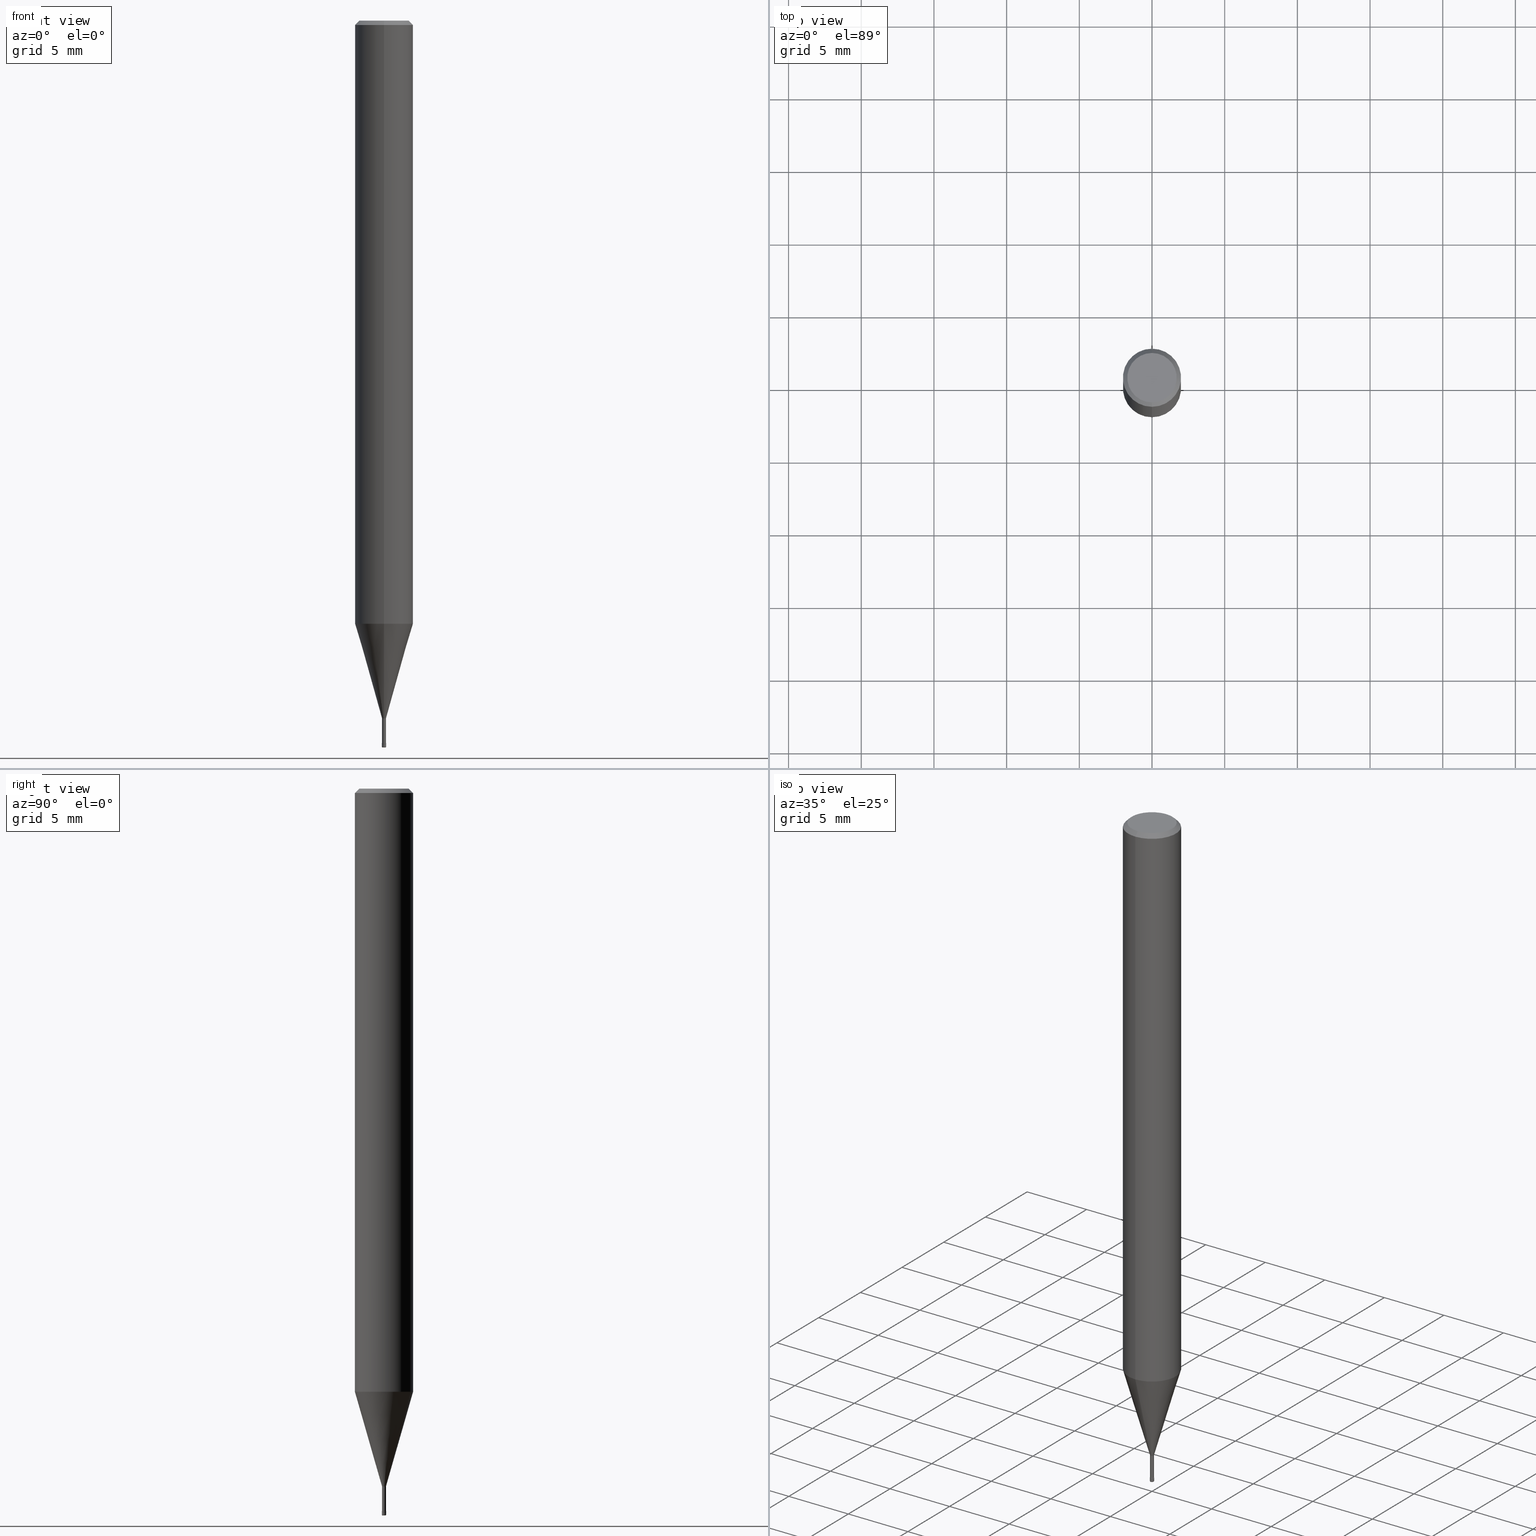
[diagram: canonical four-view strip — front | top / right | iso, engineering-drawing reading convention]
A machine part, canonical four-view strip (front | top / right | iso — engineering-drawing reading convention). The complete STEP part file that produces these views, byte-faithful:
ISO-10303-21;
HEADER;
FILE_DESCRIPTION(('no description'),'unknown implementation level');
FILE_NAME('HLRS2003-005-020E-Huellk.stp','  ',('CIMSOURCE GmbH'),('CADClick - KiM GmbH - www.kimweb.de'),'unknown preprocess','ACIS','unknown authorization');
FILE_SCHEMA(('automotive_design'));
ENDSEC;
DATA;
#1=MECHANICAL_DESIGN_GEOMETRIC_PRESENTATION_REPRESENTATION(' ',(#14,#15,#16,#17,#18,#19,#20,#21,#22,#23,#24,#25,#26,#27,#28,#29,#30,#31,#32,#33,#34,#35,#36,#37,#38,#39,#40,#41,#42,#43,#44,#45,#46,#47,#48,#49,#50,#51,#52,#53,#54,#55,#56,#57,#58,#59,#60,#61,#62,#63,#64,#65,#66,#67,#68,#69,#70,#71,#72,#73,#74,#75,#76,#77,#78,#79,#80),#10);
#2=PRODUCT_DEFINITION_CONTEXT('',#81,'design');
#3=APPLICATION_PROTOCOL_DEFINITION('INTERNATIONAL STANDARD','automotive_design',1994,#81);
#4=PRODUCT_CATEGORY_RELATIONSHIP('NONE','NONE',#82,#83);
#5=SHAPE_DEFINITION_REPRESENTATION(#84,#85);
#6=PRODUCT_DEFINITION_CONTEXT('',#86,'design');
#7=APPLICATION_PROTOCOL_DEFINITION('INTERNATIONAL STANDARD','automotive_design',1994,#86);
#8=PRODUCT_CATEGORY_RELATIONSHIP('NONE','NONE',#87,#88);
#9=SHAPE_DEFINITION_REPRESENTATION(#89,#90);
#10= (GEOMETRIC_REPRESENTATION_CONTEXT(3)GLOBAL_UNCERTAINTY_ASSIGNED_CONTEXT((#93))GLOBAL_UNIT_ASSIGNED_CONTEXT((#95,#96,#97))REPRESENTATION_CONTEXT('NONE','WORKSPACE'));
#14=STYLED_ITEM('',(#99),#100);
#15=STYLED_ITEM('',(#101),#102);
#16=STYLED_ITEM('',(#103),#104);
#17=STYLED_ITEM('',(#105),#106);
#18=STYLED_ITEM('',(#107),#108);
#19=STYLED_ITEM('',(#109),#110);
#20=STYLED_ITEM('',(#111),#112);
#21=STYLED_ITEM('',(#113),#114);
#22=STYLED_ITEM('',(#115),#116);
#23=STYLED_ITEM('',(#117),#118);
#24=STYLED_ITEM('',(#119),#120);
#25=STYLED_ITEM('',(#121),#122);
#26=STYLED_ITEM('',(#123),#124);
#27=STYLED_ITEM('',(#125),#126);
#28=STYLED_ITEM('',(#127),#128);
#29=STYLED_ITEM('',(#129),#130);
#30=STYLED_ITEM('',(#131),#132);
#31=STYLED_ITEM('',(#133),#134);
#32=STYLED_ITEM('',(#135),#136);
#33=STYLED_ITEM('',(#137),#138);
#34=STYLED_ITEM('',(#139),#140);
#35=STYLED_ITEM('',(#141),#142);
#36=STYLED_ITEM('',(#143),#144);
#37=STYLED_ITEM('',(#145),#146);
#38=STYLED_ITEM('',(#147),#148);
#39=STYLED_ITEM('',(#149),#150);
#40=STYLED_ITEM('',(#151),#152);
#41=STYLED_ITEM('',(#153),#154);
#42=STYLED_ITEM('',(#155),#156);
#43=STYLED_ITEM('',(#157),#158);
#44=STYLED_ITEM('',(#159),#160);
#45=STYLED_ITEM('',(#161),#162);
#46=STYLED_ITEM('',(#163),#164);
#47=STYLED_ITEM('',(#165),#166);
#48=STYLED_ITEM('',(#167),#168);
#49=STYLED_ITEM('',(#169),#170);
#50=STYLED_ITEM('',(#171),#172);
#51=STYLED_ITEM('',(#173),#174);
#52=STYLED_ITEM('',(#175),#176);
#53=STYLED_ITEM('',(#177),#178);
#54=STYLED_ITEM('',(#179),#180);
#55=STYLED_ITEM('',(#181),#182);
#56=STYLED_ITEM('',(#183),#184);
#57=STYLED_ITEM('',(#185),#186);
#58=STYLED_ITEM('',(#187),#188);
#59=STYLED_ITEM('',(#189),#190);
#60=STYLED_ITEM('',(#191),#192);
#61=STYLED_ITEM('',(#193),#194);
#62=STYLED_ITEM('',(#195),#196);
#63=STYLED_ITEM('',(#197),#198);
#64=STYLED_ITEM('',(#199),#200);
#65=STYLED_ITEM('',(#201),#202);
#66=STYLED_ITEM('',(#203),#204);
#67=STYLED_ITEM('',(#205),#206);
#68=STYLED_ITEM('',(#207),#208);
#69=STYLED_ITEM('',(#209),#210);
#70=STYLED_ITEM('',(#211),#212);
#71=STYLED_ITEM('',(#213),#214);
#72=STYLED_ITEM('',(#215),#216);
#73=STYLED_ITEM('',(#217),#218);
#74=STYLED_ITEM('',(#219),#220);
#75=STYLED_ITEM('',(#221),#222);
#76=STYLED_ITEM('',(#223),#224);
#77=STYLED_ITEM('',(#225),#226);
#78=STYLED_ITEM('',(#227),#228);
#79=STYLED_ITEM('',(#229),#230);
#80=STYLED_ITEM('',(#231),#232);
#81=APPLICATION_CONTEXT(' ');
#82=PRODUCT_CATEGORY('part','NONE');
#83=PRODUCT_RELATED_PRODUCT_CATEGORY('detail',' ',(#233));
#84=PRODUCT_DEFINITION_SHAPE('NONE','NONE',#234);
#85=ADVANCED_BREP_SHAPE_REPRESENTATION('1',(#156,#235),#10);
#86=APPLICATION_CONTEXT(' ');
#87=PRODUCT_CATEGORY('part','NONE');
#88=PRODUCT_RELATED_PRODUCT_CATEGORY('detail',' ',(#236));
#89=PRODUCT_DEFINITION_SHAPE('NONE','NONE',#237);
#90=ADVANCED_BREP_SHAPE_REPRESENTATION('2',(#134,#238),#10);
#93=UNCERTAINTY_MEASURE_WITH_UNIT(LENGTH_MEASURE(1.0E-006),#95,'','');
#95= (CONVERSION_BASED_UNIT('MILLIMETRE',#241)LENGTH_UNIT()NAMED_UNIT(#244));
#96= (NAMED_UNIT(#246)PLANE_ANGLE_UNIT()SI_UNIT($,.RADIAN.));
#97= (NAMED_UNIT(#246)SOLID_ANGLE_UNIT()SI_UNIT($,.STERADIAN.));
#99=PRESENTATION_STYLE_ASSIGNMENT((#252));
#100=VERTEX_POINT('',#253);
#101=PRESENTATION_STYLE_ASSIGNMENT((#254));
#102=ADVANCED_FACE('',(#255),#256,.T.);
#103=PRESENTATION_STYLE_ASSIGNMENT((#257));
#104=EDGE_CURVE('',#222,#100,#258,.T.);
#105=PRESENTATION_STYLE_ASSIGNMENT((#259));
#106=ADVANCED_FACE('',(#260),#261,.T.);
#107=PRESENTATION_STYLE_ASSIGNMENT((#262));
#108=ADVANCED_FACE('',(#263),#264,.T.);
#109=PRESENTATION_STYLE_ASSIGNMENT((#265));
#110=ADVANCED_FACE('',(#266),#267,.T.);
#111=PRESENTATION_STYLE_ASSIGNMENT((#268));
#112=EDGE_CURVE('',#162,#132,#269,.T.);
#113=PRESENTATION_STYLE_ASSIGNMENT((#270));
#114=EDGE_CURVE('',#192,#162,#271,.T.);
#115=PRESENTATION_STYLE_ASSIGNMENT((#272));
#116=EDGE_CURVE('',#198,#200,#273,.T.);
#117=PRESENTATION_STYLE_ASSIGNMENT((#274));
#118=EDGE_CURVE('',#224,#170,#275,.T.);
#119=PRESENTATION_STYLE_ASSIGNMENT((#276));
#120=VERTEX_POINT('',#277);
#121=PRESENTATION_STYLE_ASSIGNMENT((#278));
#122=EDGE_CURVE('',#146,#120,#279,.T.);
#123=PRESENTATION_STYLE_ASSIGNMENT((#280));
#124=EDGE_CURVE('',#162,#192,#281,.T.);
#125=PRESENTATION_STYLE_ASSIGNMENT((#282));
#126=EDGE_CURVE('',#142,#132,#283,.T.);
#127=PRESENTATION_STYLE_ASSIGNMENT((#284));
#128=ADVANCED_FACE('',(#285),#286,.T.);
#129=PRESENTATION_STYLE_ASSIGNMENT((#287));
#130=EDGE_CURVE('',#160,#198,#288,.T.);
#131=PRESENTATION_STYLE_ASSIGNMENT((#289));
#132=VERTEX_POINT('',#290);
#133=PRESENTATION_STYLE_ASSIGNMENT((#291));
#134=MANIFOLD_SOLID_BREP('2',#292);
#135=PRESENTATION_STYLE_ASSIGNMENT((#293));
#136=EDGE_CURVE('',#200,#216,#294,.T.);
#137=PRESENTATION_STYLE_ASSIGNMENT((#295));
#138=ADVANCED_FACE('',(#296),#297,.T.);
#139=PRESENTATION_STYLE_ASSIGNMENT((#298));
#140=ADVANCED_FACE('',(#299),#300,.T.);
#141=PRESENTATION_STYLE_ASSIGNMENT((#301));
#142=VERTEX_POINT('',#302);
#143=PRESENTATION_STYLE_ASSIGNMENT((#303));
#144=EDGE_CURVE('',#216,#160,#304,.T.);
#145=PRESENTATION_STYLE_ASSIGNMENT((#305));
#146=VERTEX_POINT('',#306);
#147=PRESENTATION_STYLE_ASSIGNMENT((#307));
#148=EDGE_CURVE('',#226,#178,#308,.T.);
#149=PRESENTATION_STYLE_ASSIGNMENT((#309));
#150=EDGE_CURVE('',#120,#146,#310,.T.);
#151=PRESENTATION_STYLE_ASSIGNMENT((#311));
#152=EDGE_CURVE('',#166,#100,#312,.T.);
#153=PRESENTATION_STYLE_ASSIGNMENT((#313));
#154=EDGE_CURVE('',#172,#166,#314,.T.);
#155=PRESENTATION_STYLE_ASSIGNMENT((#315));
#156=MANIFOLD_SOLID_BREP('1',#316);
#157=PRESENTATION_STYLE_ASSIGNMENT((#317));
#158=ADVANCED_FACE('',(#318),#319,.T.);
#159=PRESENTATION_STYLE_ASSIGNMENT((#320));
#160=VERTEX_POINT('',#321);
#161=PRESENTATION_STYLE_ASSIGNMENT((#322));
#162=VERTEX_POINT('',#323);
#163=PRESENTATION_STYLE_ASSIGNMENT((#324));
#164=ADVANCED_FACE('',(#325),#326,.T.);
#165=PRESENTATION_STYLE_ASSIGNMENT((#327));
#166=VERTEX_POINT('',#328);
#167=PRESENTATION_STYLE_ASSIGNMENT((#329));
#168=EDGE_CURVE('',#166,#172,#330,.T.);
#169=PRESENTATION_STYLE_ASSIGNMENT((#331));
#170=VERTEX_POINT('',#332);
#171=PRESENTATION_STYLE_ASSIGNMENT((#333));
#172=VERTEX_POINT('',#334);
#173=PRESENTATION_STYLE_ASSIGNMENT((#335));
#174=ADVANCED_FACE('',(#336),#337,.T.);
#175=PRESENTATION_STYLE_ASSIGNMENT((#338));
#176=EDGE_CURVE('',#132,#178,#339,.T.);
#177=PRESENTATION_STYLE_ASSIGNMENT((#340));
#178=VERTEX_POINT('',#341);
#179=PRESENTATION_STYLE_ASSIGNMENT((#342));
#180=EDGE_CURVE('',#200,#198,#343,.T.);
#181=PRESENTATION_STYLE_ASSIGNMENT((#344));
#182=ADVANCED_FACE('',(#345),#346,.T.);
#183=PRESENTATION_STYLE_ASSIGNMENT((#347));
#184=EDGE_CURVE('',#100,#224,#348,.T.);
#185=PRESENTATION_STYLE_ASSIGNMENT((#349));
#186=ADVANCED_FACE('',(#350),#351,.T.);
#187=PRESENTATION_STYLE_ASSIGNMENT((#352));
#188=EDGE_CURVE('',#142,#192,#353,.T.);
#189=PRESENTATION_STYLE_ASSIGNMENT((#354));
#190=ADVANCED_FACE('',(#355),#356,.T.);
#191=PRESENTATION_STYLE_ASSIGNMENT((#357));
#192=VERTEX_POINT('',#358);
#193=PRESENTATION_STYLE_ASSIGNMENT((#359));
#194=EDGE_CURVE('',#160,#216,#360,.T.);
#195=PRESENTATION_STYLE_ASSIGNMENT((#361));
#196=EDGE_CURVE('',#226,#142,#362,.T.);
#197=PRESENTATION_STYLE_ASSIGNMENT((#363));
#198=VERTEX_POINT('',#364);
#199=PRESENTATION_STYLE_ASSIGNMENT((#365));
#200=VERTEX_POINT('',#366);
#201=PRESENTATION_STYLE_ASSIGNMENT((#367));
#202=EDGE_CURVE('',#170,#222,#368,.T.);
#203=PRESENTATION_STYLE_ASSIGNMENT((#369));
#204=ADVANCED_FACE('',(#370),#371,.T.);
#205=PRESENTATION_STYLE_ASSIGNMENT((#372));
#206=ADVANCED_FACE('',(#373,#374),#375,.T.);
#207=PRESENTATION_STYLE_ASSIGNMENT((#376));
#208=ADVANCED_FACE('',(#377),#378,.T.);
#209=PRESENTATION_STYLE_ASSIGNMENT((#379));
#210=EDGE_CURVE('',#120,#200,#380,.T.);
#211=PRESENTATION_STYLE_ASSIGNMENT((#381));
#212=EDGE_CURVE('',#178,#226,#382,.T.);
#213=PRESENTATION_STYLE_ASSIGNMENT((#383));
#214=ADVANCED_FACE('',(#384),#385,.T.);
#215=PRESENTATION_STYLE_ASSIGNMENT((#386));
#216=VERTEX_POINT('',#387);
#217=PRESENTATION_STYLE_ASSIGNMENT((#388));
#218=EDGE_CURVE('',#198,#146,#389,.T.);
#219=PRESENTATION_STYLE_ASSIGNMENT((#390));
#220=EDGE_CURVE('',#222,#170,#391,.T.);
#221=PRESENTATION_STYLE_ASSIGNMENT((#392));
#222=VERTEX_POINT('',#393);
#223=PRESENTATION_STYLE_ASSIGNMENT((#394));
#224=VERTEX_POINT('',#395);
#225=PRESENTATION_STYLE_ASSIGNMENT((#396));
#226=VERTEX_POINT('',#397);
#227=PRESENTATION_STYLE_ASSIGNMENT((#398));
#228=EDGE_CURVE('',#224,#172,#399,.T.);
#229=PRESENTATION_STYLE_ASSIGNMENT((#400));
#230=EDGE_CURVE('',#132,#142,#401,.T.);
#231=PRESENTATION_STYLE_ASSIGNMENT((#402));
#232=EDGE_CURVE('',#224,#100,#403,.T.);
#233=PRODUCT('1','1','PART-1-DESC',(#404));
#234=PRODUCT_DEFINITION('NONE','NONE',#405,#2);
#235=AXIS2_PLACEMENT_3D('',#406,#407,#408);
#236=PRODUCT('2','2','PART-2-DESC',(#409));
#237=PRODUCT_DEFINITION('NONE','NONE',#410,#6);
#238=AXIS2_PLACEMENT_3D('',#411,#412,#413);
#241=LENGTH_MEASURE_WITH_UNIT(LENGTH_MEASURE(1.0),#414);
#244=DIMENSIONAL_EXPONENTS(1.0,0.0,0.0,0.0,0.0,0.0,0.0);
#246=DIMENSIONAL_EXPONENTS(0.0,0.0,0.0,0.0,0.0,0.0,0.0);
#252=POINT_STYLE(' ',#415,POSITIVE_LENGTH_MEASURE(1.0E-006),#416);
#253=CARTESIAN_POINT('',(0.0,0.15,-49.95));
#254=SURFACE_STYLE_USAGE(.BOTH.,#417);
#255=FACE_OUTER_BOUND('',#418,.T.);
#256=CYLINDRICAL_SURFACE('',#419,2.0);
#257=CURVE_STYLE('',#420,POSITIVE_LENGTH_MEASURE(1.0E-006),#421);
#258=CIRCLE('',#422,0.0499999999999998);
#259=SURFACE_STYLE_USAGE(.BOTH.,#423);
#260=FACE_OUTER_BOUND('',#424,.T.);
#261=CONICAL_SURFACE('',#425,1.06745,0.279253818445948);
#262=SURFACE_STYLE_USAGE(.BOTH.,#426);
#263=FACE_OUTER_BOUND('',#427,.T.);
#264=CONICAL_SURFACE('',#428,0.14995,0.000399999978666625);
#265=SURFACE_STYLE_USAGE(.BOTH.,#429);
#266=FACE_OUTER_BOUND('',#430,.T.);
#267=CONICAL_SURFACE('',#431,0.14995,0.000399999978666625);
#268=CURVE_STYLE('',#432,POSITIVE_LENGTH_MEASURE(1.0E-006),#433);
#269=LINE('',#434,#435);
#270=CURVE_STYLE('',#436,POSITIVE_LENGTH_MEASURE(1.0E-006),#437);
#271=CIRCLE('',#438,1.7);
#272=CURVE_STYLE('',#439,POSITIVE_LENGTH_MEASURE(1.0E-006),#440);
#273=CIRCLE('',#441,0.13495);
#274=CURVE_STYLE('',#442,POSITIVE_LENGTH_MEASURE(1.0E-006),#443);
#275=CIRCLE('',#444,0.0499999999999998);
#276=POINT_STYLE(' ',#445,POSITIVE_LENGTH_MEASURE(1.0E-006),#446);
#277=CARTESIAN_POINT('',(1.6526062744833E-017,-0.13495,-49.7));
#278=CURVE_STYLE('',#447,POSITIVE_LENGTH_MEASURE(1.0E-006),#448);
#279=CIRCLE('',#449,0.13495);
#280=CURVE_STYLE('',#450,POSITIVE_LENGTH_MEASURE(1.0E-006),#451);
#281=CIRCLE('',#452,1.7);
#282=CURVE_STYLE('',#453,POSITIVE_LENGTH_MEASURE(1.0E-006),#454);
#283=CIRCLE('',#455,2.0);
#284=SURFACE_STYLE_USAGE(.BOTH.,#456);
#285=FACE_OUTER_BOUND('',#457,.T.);
#286=CONICAL_SURFACE('',#458,1.85,0.785398163397453);
#287=CURVE_STYLE('',#459,POSITIVE_LENGTH_MEASURE(1.0E-006),#460);
#288=LINE('',#461,#462);
#289=POINT_STYLE(' ',#463,POSITIVE_LENGTH_MEASURE(1.0E-006),#464);
#290=CARTESIAN_POINT('',(0.0,2.0,-0.299999999999997));
#291=SURFACE_STYLE_USAGE(.BOTH.,#465);
#292=CLOSED_SHELL('',(#182,#108,#174,#110,#214,#158));
#293=CURVE_STYLE('',#466,POSITIVE_LENGTH_MEASURE(1.0E-006),#467);
#294=LINE('',#468,#469);
#295=SURFACE_STYLE_USAGE(.BOTH.,#470);
#296=FACE_OUTER_BOUND('',#471,.T.);
#297=CYLINDRICAL_SURFACE('',#472,0.13495);
#298=SURFACE_STYLE_USAGE(.BOTH.,#473);
#299=FACE_OUTER_BOUND('',#474,.T.);
#300=CONICAL_SURFACE('',#475,1.85,0.785398163397453);
#301=POINT_STYLE(' ',#476,POSITIVE_LENGTH_MEASURE(1.0E-006),#477);
#302=CARTESIAN_POINT('',(2.44921270764475E-016,-2.0,-0.299999999999997));
#303=CURVE_STYLE('',#478,POSITIVE_LENGTH_MEASURE(1.0E-006),#479);
#304=CIRCLE('',#480,1.99995);
#305=POINT_STYLE(' ',#481,POSITIVE_LENGTH_MEASURE(1.0E-006),#482);
#306=CARTESIAN_POINT('',(0.0,0.13495,-49.7));
#307=CURVE_STYLE('',#483,POSITIVE_LENGTH_MEASURE(1.0E-006),#484);
#308=CIRCLE('',#485,2.0);
#309=CURVE_STYLE('',#486,POSITIVE_LENGTH_MEASURE(1.0E-006),#487);
#310=CIRCLE('',#488,0.13495);
#311=CURVE_STYLE('',#489,POSITIVE_LENGTH_MEASURE(1.0E-006),#490);
#312=LINE('',#491,#492);
#313=CURVE_STYLE('',#493,POSITIVE_LENGTH_MEASURE(1.0E-006),#494);
#314=CIRCLE('',#495,0.1499);
#315=SURFACE_STYLE_USAGE(.BOTH.,#496);
#316=CLOSED_SHELL('',(#138,#208,#102,#140,#206,#186,#128,#190,#106,#204,#164));
#317=SURFACE_STYLE_USAGE(.BOTH.,#497);
#318=FACE_OUTER_BOUND('',#498,.T.);
#319=PLANE('',#499);
#320=POINT_STYLE(' ',#500,POSITIVE_LENGTH_MEASURE(1.0E-006),#501);
#321=CARTESIAN_POINT('',(0.0,1.99995,-41.496));
#322=POINT_STYLE(' ',#502,POSITIVE_LENGTH_MEASURE(1.0E-006),#503);
#323=CARTESIAN_POINT('',(0.0,1.7,0.0));
#324=SURFACE_STYLE_USAGE(.BOTH.,#504);
#325=FACE_OUTER_BOUND('',#505,.T.);
#326=PLANE('',#506);
#327=POINT_STYLE(' ',#507,POSITIVE_LENGTH_MEASURE(1.0E-006),#508);
#328=CARTESIAN_POINT('',(0.0,0.1499,-49.7));
#329=CURVE_STYLE('',#509,POSITIVE_LENGTH_MEASURE(1.0E-006),#510);
#330=CIRCLE('',#511,0.1499);
#331=POINT_STYLE(' ',#512,POSITIVE_LENGTH_MEASURE(1.0E-006),#513);
#332=CARTESIAN_POINT('',(1.22460635382238E-017,-0.1,-50.0));
#333=POINT_STYLE(' ',#514,POSITIVE_LENGTH_MEASURE(1.0E-006),#515);
#334=CARTESIAN_POINT('',(1.83568492437974E-017,-0.1499,-49.7));
#335=SURFACE_STYLE_USAGE(.BOTH.,#516);
#336=FACE_OUTER_BOUND('',#517,.T.);
#337=PLANE('',#518);
#338=CURVE_STYLE('',#519,POSITIVE_LENGTH_MEASURE(1.0E-006),#520);
#339=LINE('',#521,#522);
#340=POINT_STYLE(' ',#523,POSITIVE_LENGTH_MEASURE(1.0E-006),#524);
#341=CARTESIAN_POINT('',(0.0,2.0,-41.496));
#342=CURVE_STYLE('',#525,POSITIVE_LENGTH_MEASURE(1.0E-006),#526);
#343=CIRCLE('',#527,0.13495);
#344=SURFACE_STYLE_USAGE(.BOTH.,#528);
#345=FACE_OUTER_BOUND('',#529,.T.);
#346=TOROIDAL_SURFACE('',#530,0.1,0.0499999999999998);
#347=CURVE_STYLE('',#531,POSITIVE_LENGTH_MEASURE(1.0E-006),#532);
#348=CIRCLE('',#533,0.15);
#349=SURFACE_STYLE_USAGE(.BOTH.,#534);
#350=FACE_OUTER_BOUND('',#535,.T.);
#351=PLANE('',#536);
#352=CURVE_STYLE('',#537,POSITIVE_LENGTH_MEASURE(1.0E-006),#538);
#353=LINE('',#539,#540);
#354=SURFACE_STYLE_USAGE(.BOTH.,#541);
#355=FACE_OUTER_BOUND('',#542,.T.);
#356=CYLINDRICAL_SURFACE('',#543,2.0);
#357=POINT_STYLE(' ',#544,POSITIVE_LENGTH_MEASURE(1.0E-006),#545);
#358=CARTESIAN_POINT('',(2.08183080149804E-016,-1.7,0.0));
#359=CURVE_STYLE('',#546,POSITIVE_LENGTH_MEASURE(1.0E-006),#547);
#360=CIRCLE('',#548,1.99995);
#361=CURVE_STYLE('',#549,POSITIVE_LENGTH_MEASURE(1.0E-006),#550);
#362=LINE('',#551,#552);
#363=POINT_STYLE(' ',#553,POSITIVE_LENGTH_MEASURE(1.0E-006),#554);
#364=CARTESIAN_POINT('',(0.0,0.13495,-48.0));
#365=POINT_STYLE(' ',#555,POSITIVE_LENGTH_MEASURE(1.0E-006),#556);
#366=CARTESIAN_POINT('',(1.6526062744833E-017,-0.13495,-48.0));
#367=CURVE_STYLE('',#557,POSITIVE_LENGTH_MEASURE(1.0E-006),#558);
#368=CIRCLE('',#559,0.1);
#369=SURFACE_STYLE_USAGE(.BOTH.,#560);
#370=FACE_OUTER_BOUND('',#561,.T.);
#371=CYLINDRICAL_SURFACE('',#562,0.13495);
#372=SURFACE_STYLE_USAGE(.BOTH.,#563);
#373=FACE_OUTER_BOUND('',#564,.T.);
#374=FACE_BOUND('',#565,.T.);
#375=PLANE('',#566);
#376=SURFACE_STYLE_USAGE(.BOTH.,#567);
#377=FACE_OUTER_BOUND('',#568,.T.);
#378=CONICAL_SURFACE('',#569,1.06745,0.279253818445948);
#379=CURVE_STYLE('',#570,POSITIVE_LENGTH_MEASURE(1.0E-006),#571);
#380=LINE('',#572,#573);
#381=CURVE_STYLE('',#574,POSITIVE_LENGTH_MEASURE(1.0E-006),#575);
#382=CIRCLE('',#576,2.0);
#383=SURFACE_STYLE_USAGE(.BOTH.,#577);
#384=FACE_OUTER_BOUND('',#578,.T.);
#385=TOROIDAL_SURFACE('',#579,0.1,0.0499999999999998);
#386=POINT_STYLE(' ',#580,POSITIVE_LENGTH_MEASURE(1.0E-006),#581);
#387=CARTESIAN_POINT('',(2.44915147732706E-016,-1.99995,-41.496));
#388=CURVE_STYLE('',#582,POSITIVE_LENGTH_MEASURE(1.0E-006),#583);
#389=LINE('',#584,#585);
#390=CURVE_STYLE('',#586,POSITIVE_LENGTH_MEASURE(1.0E-006),#587);
#391=CIRCLE('',#588,0.1);
#392=POINT_STYLE(' ',#589,POSITIVE_LENGTH_MEASURE(1.0E-006),#590);
#393=CARTESIAN_POINT('',(0.0,0.1,-50.0));
#394=POINT_STYLE(' ',#591,POSITIVE_LENGTH_MEASURE(1.0E-006),#592);
#395=CARTESIAN_POINT('',(1.83690953073357E-017,-0.15,-49.95));
#396=POINT_STYLE(' ',#593,POSITIVE_LENGTH_MEASURE(1.0E-006),#594);
#397=CARTESIAN_POINT('',(2.44921270764475E-016,-2.0,-41.496));
#398=CURVE_STYLE('',#595,POSITIVE_LENGTH_MEASURE(1.0E-006),#596);
#399=LINE('',#597,#598);
#400=CURVE_STYLE('',#599,POSITIVE_LENGTH_MEASURE(1.0E-006),#600);
#401=CIRCLE('',#601,2.0);
#402=CURVE_STYLE('',#602,POSITIVE_LENGTH_MEASURE(1.0E-006),#603);
#403=CIRCLE('',#604,0.15);
#404=PRODUCT_CONTEXT('',#81,'mechanical');
#405=PRODUCT_DEFINITION_FORMATION_WITH_SPECIFIED_SOURCE(' ','NONE',#233,.NOT_KNOWN.);
#406=CARTESIAN_POINT('',(0.0,0.0,0.0));
#407=DIRECTION('',(0.0,0.0,1.0));
#408=DIRECTION('',(1.0,0.0,0.0));
#409=PRODUCT_CONTEXT('',#86,'mechanical');
#410=PRODUCT_DEFINITION_FORMATION_WITH_SPECIFIED_SOURCE(' ','NONE',#236,.NOT_KNOWN.);
#411=CARTESIAN_POINT('',(0.0,0.0,0.0));
#412=DIRECTION('',(0.0,0.0,1.0));
#413=DIRECTION('',(1.0,0.0,0.0));
#414= (NAMED_UNIT(#244)LENGTH_UNIT()SI_UNIT(.MILLI.,.METRE.));
#415=PRE_DEFINED_MARKER('');
#416=COLOUR_RGB('',0.800000011920929,0.800000011920929,0.800000011920929);
#417=SURFACE_SIDE_STYLE('',(#606));
#418=EDGE_LOOP('',(#607,#608,#609,#610));
#419=AXIS2_PLACEMENT_3D('',#611,#612,#613);
#420=DRAUGHTING_PRE_DEFINED_CURVE_FONT('continuous');
#421=COLOUR_RGB('',0.800000011920929,0.800000011920929,0.800000011920929);
#422=AXIS2_PLACEMENT_3D('',#614,#615,#616);
#423=SURFACE_SIDE_STYLE('',(#617));
#424=EDGE_LOOP('',(#618,#619,#620,#621));
#425=AXIS2_PLACEMENT_3D('',#622,#623,#624);
#426=SURFACE_SIDE_STYLE('',(#625));
#427=EDGE_LOOP('',(#626,#627,#628,#629));
#428=AXIS2_PLACEMENT_3D('',#630,#631,#632);
#429=SURFACE_SIDE_STYLE('',(#633));
#430=EDGE_LOOP('',(#634,#635,#636,#637));
#431=AXIS2_PLACEMENT_3D('',#638,#639,#640);
#432=DRAUGHTING_PRE_DEFINED_CURVE_FONT('continuous');
#433=COLOUR_RGB('',0.498039215803146,0.498039215803146,0.498039215803146);
#434=CARTESIAN_POINT('',(-2.2655217545714E-016,1.85,-0.149999999999999));
#435=VECTOR('',#641,1.0);
#436=DRAUGHTING_PRE_DEFINED_CURVE_FONT('continuous');
#437=COLOUR_RGB('',0.498039215803146,0.498039215803146,0.498039215803146);
#438=AXIS2_PLACEMENT_3D('',#642,#643,#644);
#439=DRAUGHTING_PRE_DEFINED_CURVE_FONT('continuous');
#440=COLOUR_RGB('',0.498039215803146,0.498039215803146,0.498039215803146);
#441=AXIS2_PLACEMENT_3D('',#645,#646,#647);
#442=DRAUGHTING_PRE_DEFINED_CURVE_FONT('continuous');
#443=COLOUR_RGB('',0.800000011920929,0.800000011920929,0.800000011920929);
#444=AXIS2_PLACEMENT_3D('',#648,#649,#650);
#445=PRE_DEFINED_MARKER('');
#446=COLOUR_RGB('',0.498039215803146,0.498039215803146,0.498039215803146);
#447=DRAUGHTING_PRE_DEFINED_CURVE_FONT('continuous');
#448=COLOUR_RGB('',0.498039215803146,0.498039215803146,0.498039215803146);
#449=AXIS2_PLACEMENT_3D('',#651,#652,#653);
#450=DRAUGHTING_PRE_DEFINED_CURVE_FONT('continuous');
#451=COLOUR_RGB('',0.498039215803146,0.498039215803146,0.498039215803146);
#452=AXIS2_PLACEMENT_3D('',#654,#655,#656);
#453=DRAUGHTING_PRE_DEFINED_CURVE_FONT('continuous');
#454=COLOUR_RGB('',0.498039215803146,0.498039215803146,0.498039215803146);
#455=AXIS2_PLACEMENT_3D('',#657,#658,#659);
#456=SURFACE_SIDE_STYLE('',(#660));
#457=EDGE_LOOP('',(#661,#662,#663,#664));
#458=AXIS2_PLACEMENT_3D('',#665,#666,#667);
#459=DRAUGHTING_PRE_DEFINED_CURVE_FONT('continuous');
#460=COLOUR_RGB('',0.498039215803146,0.498039215803146,0.498039215803146);
#461=CARTESIAN_POINT('',(-1.3072060523877E-016,1.06745,-44.748));
#462=VECTOR('',#668,1.0);
#463=PRE_DEFINED_MARKER('');
#464=COLOUR_RGB('',0.498039215803146,0.498039215803146,0.498039215803146);
#465=SURFACE_SIDE_STYLE('',(#669));
#466=DRAUGHTING_PRE_DEFINED_CURVE_FONT('continuous');
#467=COLOUR_RGB('',0.498039215803146,0.498039215803146,0.498039215803146);
#468=CARTESIAN_POINT('',(1.3072060523877E-016,-1.06745,-44.748));
#469=VECTOR('',#670,1.0);
#470=SURFACE_SIDE_STYLE('',(#671));
#471=EDGE_LOOP('',(#672,#673,#674,#675));
#472=AXIS2_PLACEMENT_3D('',#676,#677,#678);
#473=SURFACE_SIDE_STYLE('',(#679));
#474=EDGE_LOOP('',(#680,#681,#682,#683));
#475=AXIS2_PLACEMENT_3D('',#684,#685,#686);
#476=PRE_DEFINED_MARKER('');
#477=COLOUR_RGB('',0.498039215803146,0.498039215803146,0.498039215803146);
#478=DRAUGHTING_PRE_DEFINED_CURVE_FONT('continuous');
#479=COLOUR_RGB('',0.498039215803146,0.498039215803146,0.498039215803146);
#480=AXIS2_PLACEMENT_3D('',#687,#688,#689);
#481=PRE_DEFINED_MARKER('');
#482=COLOUR_RGB('',0.498039215803146,0.498039215803146,0.498039215803146);
#483=DRAUGHTING_PRE_DEFINED_CURVE_FONT('continuous');
#484=COLOUR_RGB('',0.498039215803146,0.498039215803146,0.498039215803146);
#485=AXIS2_PLACEMENT_3D('',#690,#691,#692);
#486=DRAUGHTING_PRE_DEFINED_CURVE_FONT('continuous');
#487=COLOUR_RGB('',0.498039215803146,0.498039215803146,0.498039215803146);
#488=AXIS2_PLACEMENT_3D('',#693,#694,#695);
#489=DRAUGHTING_PRE_DEFINED_CURVE_FONT('continuous');
#490=COLOUR_RGB('',0.800000011920929,0.800000011920929,0.800000011920929);
#491=CARTESIAN_POINT('',(-1.83629722755666E-017,0.14995,-49.825));
#492=VECTOR('',#696,1.0);
#493=DRAUGHTING_PRE_DEFINED_CURVE_FONT('continuous');
#494=COLOUR_RGB('',0.800000011920929,0.800000011920929,0.800000011920929);
#495=AXIS2_PLACEMENT_3D('',#697,#698,#699);
#496=SURFACE_SIDE_STYLE('',(#700));
#497=SURFACE_SIDE_STYLE('',(#701));
#498=EDGE_LOOP('',(#702,#703));
#499=AXIS2_PLACEMENT_3D('',#704,#705,#706);
#500=PRE_DEFINED_MARKER('');
#501=COLOUR_RGB('',0.498039215803146,0.498039215803146,0.498039215803146);
#502=PRE_DEFINED_MARKER('');
#503=COLOUR_RGB('',0.498039215803146,0.498039215803146,0.498039215803146);
#504=SURFACE_SIDE_STYLE('',(#707));
#505=EDGE_LOOP('',(#708,#709));
#506=AXIS2_PLACEMENT_3D('',#710,#711,#712);
#507=PRE_DEFINED_MARKER('');
#508=COLOUR_RGB('',0.800000011920929,0.800000011920929,0.800000011920929);
#509=DRAUGHTING_PRE_DEFINED_CURVE_FONT('continuous');
#510=COLOUR_RGB('',0.800000011920929,0.800000011920929,0.800000011920929);
#511=AXIS2_PLACEMENT_3D('',#713,#714,#715);
#512=PRE_DEFINED_MARKER('');
#513=COLOUR_RGB('',0.800000011920929,0.800000011920929,0.800000011920929);
#514=PRE_DEFINED_MARKER('');
#515=COLOUR_RGB('',0.800000011920929,0.800000011920929,0.800000011920929);
#516=SURFACE_SIDE_STYLE('',(#716));
#517=EDGE_LOOP('',(#717,#718));
#518=AXIS2_PLACEMENT_3D('',#719,#720,#721);
#519=DRAUGHTING_PRE_DEFINED_CURVE_FONT('continuous');
#520=COLOUR_RGB('',0.498039215803146,0.498039215803146,0.498039215803146);
#521=CARTESIAN_POINT('',(-2.44921270764475E-016,2.0,-20.898));
#522=VECTOR('',#722,1.0);
#523=PRE_DEFINED_MARKER('');
#524=COLOUR_RGB('',0.498039215803146,0.498039215803146,0.498039215803146);
#525=DRAUGHTING_PRE_DEFINED_CURVE_FONT('continuous');
#526=COLOUR_RGB('',0.498039215803146,0.498039215803146,0.498039215803146);
#527=AXIS2_PLACEMENT_3D('',#723,#724,#725);
#528=SURFACE_SIDE_STYLE('',(#726));
#529=EDGE_LOOP('',(#727,#728,#729,#730));
#530=AXIS2_PLACEMENT_3D('',#731,#732,#733);
#531=DRAUGHTING_PRE_DEFINED_CURVE_FONT('continuous');
#532=COLOUR_RGB('',0.800000011920929,0.800000011920929,0.800000011920929);
#533=AXIS2_PLACEMENT_3D('',#734,#735,#736);
#534=SURFACE_SIDE_STYLE('',(#737));
#535=EDGE_LOOP('',(#738,#739));
#536=AXIS2_PLACEMENT_3D('',#740,#741,#742);
#537=DRAUGHTING_PRE_DEFINED_CURVE_FONT('continuous');
#538=COLOUR_RGB('',0.498039215803146,0.498039215803146,0.498039215803146);
#539=CARTESIAN_POINT('',(2.2655217545714E-016,-1.85,-0.149999999999999));
#540=VECTOR('',#743,1.0);
#541=SURFACE_SIDE_STYLE('',(#744));
#542=EDGE_LOOP('',(#745,#746,#747,#748));
#543=AXIS2_PLACEMENT_3D('',#749,#750,#751);
#544=PRE_DEFINED_MARKER('');
#545=COLOUR_RGB('',0.498039215803146,0.498039215803146,0.498039215803146);
#546=DRAUGHTING_PRE_DEFINED_CURVE_FONT('continuous');
#547=COLOUR_RGB('',0.498039215803146,0.498039215803146,0.498039215803146);
#548=AXIS2_PLACEMENT_3D('',#752,#753,#754);
#549=DRAUGHTING_PRE_DEFINED_CURVE_FONT('continuous');
#550=COLOUR_RGB('',0.498039215803146,0.498039215803146,0.498039215803146);
#551=CARTESIAN_POINT('',(2.44921270764475E-016,-2.0,-20.898));
#552=VECTOR('',#755,1.0);
#553=PRE_DEFINED_MARKER('');
#554=COLOUR_RGB('',0.498039215803146,0.498039215803146,0.498039215803146);
#555=PRE_DEFINED_MARKER('');
#556=COLOUR_RGB('',0.498039215803146,0.498039215803146,0.498039215803146);
#557=DRAUGHTING_PRE_DEFINED_CURVE_FONT('continuous');
#558=COLOUR_RGB('',0.800000011920929,0.800000011920929,0.800000011920929);
#559=AXIS2_PLACEMENT_3D('',#756,#757,#758);
#560=SURFACE_SIDE_STYLE('',(#759));
#561=EDGE_LOOP('',(#760,#761,#762,#763));
#562=AXIS2_PLACEMENT_3D('',#764,#765,#766);
#563=SURFACE_SIDE_STYLE('',(#767));
#564=EDGE_LOOP('',(#768,#769));
#565=EDGE_LOOP('',(#770,#771));
#566=AXIS2_PLACEMENT_3D('',#772,#773,#774);
#567=SURFACE_SIDE_STYLE('',(#775));
#568=EDGE_LOOP('',(#776,#777,#778,#779));
#569=AXIS2_PLACEMENT_3D('',#780,#781,#782);
#570=DRAUGHTING_PRE_DEFINED_CURVE_FONT('continuous');
#571=COLOUR_RGB('',0.498039215803146,0.498039215803146,0.498039215803146);
#572=CARTESIAN_POINT('',(1.6526062744833E-017,-0.13495,-48.85));
#573=VECTOR('',#783,1.0);
#574=DRAUGHTING_PRE_DEFINED_CURVE_FONT('continuous');
#575=COLOUR_RGB('',0.498039215803146,0.498039215803146,0.498039215803146);
#576=AXIS2_PLACEMENT_3D('',#784,#785,#786);
#577=SURFACE_SIDE_STYLE('',(#787));
#578=EDGE_LOOP('',(#788,#789,#790,#791));
#579=AXIS2_PLACEMENT_3D('',#792,#793,#794);
#580=PRE_DEFINED_MARKER('');
#581=COLOUR_RGB('',0.498039215803146,0.498039215803146,0.498039215803146);
#582=DRAUGHTING_PRE_DEFINED_CURVE_FONT('continuous');
#583=COLOUR_RGB('',0.498039215803146,0.498039215803146,0.498039215803146);
#584=CARTESIAN_POINT('',(-1.6526062744833E-017,0.13495,-48.85));
#585=VECTOR('',#795,1.0);
#586=DRAUGHTING_PRE_DEFINED_CURVE_FONT('continuous');
#587=COLOUR_RGB('',0.800000011920929,0.800000011920929,0.800000011920929);
#588=AXIS2_PLACEMENT_3D('',#796,#797,#798);
#589=PRE_DEFINED_MARKER('');
#590=COLOUR_RGB('',0.800000011920929,0.800000011920929,0.800000011920929);
#591=PRE_DEFINED_MARKER('');
#592=COLOUR_RGB('',0.800000011920929,0.800000011920929,0.800000011920929);
#593=PRE_DEFINED_MARKER('');
#594=COLOUR_RGB('',0.498039215803146,0.498039215803146,0.498039215803146);
#595=DRAUGHTING_PRE_DEFINED_CURVE_FONT('continuous');
#596=COLOUR_RGB('',0.800000011920929,0.800000011920929,0.800000011920929);
#597=CARTESIAN_POINT('',(1.83629722755666E-017,-0.14995,-49.825));
#598=VECTOR('',#799,1.0);
#599=DRAUGHTING_PRE_DEFINED_CURVE_FONT('continuous');
#600=COLOUR_RGB('',0.498039215803146,0.498039215803146,0.498039215803146);
#601=AXIS2_PLACEMENT_3D('',#800,#801,#802);
#602=DRAUGHTING_PRE_DEFINED_CURVE_FONT('continuous');
#603=COLOUR_RGB('',0.800000011920929,0.800000011920929,0.800000011920929);
#604=AXIS2_PLACEMENT_3D('',#803,#804,#805);
#606=SURFACE_STYLE_FILL_AREA(#806);
#607=ORIENTED_EDGE('',*,*,#176,.F.);
#608=ORIENTED_EDGE('',*,*,#230,.T.);
#609=ORIENTED_EDGE('',*,*,#196,.F.);
#610=ORIENTED_EDGE('',*,*,#212,.F.);
#611=CARTESIAN_POINT('',(0.0,0.0,-20.898));
#612=DIRECTION('',(-0.0,-0.0,1.0));
#613=DIRECTION('',(0.0,1.0,0.0));
#614=CARTESIAN_POINT('',(-1.22460635382238E-017,0.1,-49.95));
#615=DIRECTION('',(1.0,1.22460635382238E-016,0.0));
#616=DIRECTION('',(-1.22460635382238E-016,1.0,0.0));
#617=SURFACE_STYLE_FILL_AREA(#807);
#618=ORIENTED_EDGE('',*,*,#130,.T.);
#619=ORIENTED_EDGE('',*,*,#180,.F.);
#620=ORIENTED_EDGE('',*,*,#136,.T.);
#621=ORIENTED_EDGE('',*,*,#144,.T.);
#622=CARTESIAN_POINT('',(0.0,0.0,-44.748));
#623=DIRECTION('',(-0.0,-0.0,1.0));
#624=DIRECTION('',(0.0,1.0,0.0));
#625=SURFACE_STYLE_FILL_AREA(#808);
#626=ORIENTED_EDGE('',*,*,#152,.F.);
#627=ORIENTED_EDGE('',*,*,#168,.T.);
#628=ORIENTED_EDGE('',*,*,#228,.F.);
#629=ORIENTED_EDGE('',*,*,#184,.F.);
#630=CARTESIAN_POINT('',(0.0,0.0,-49.825));
#631=DIRECTION('',(0.0,-0.0,-1.0));
#632=DIRECTION('',(0.0,1.0,0.0));
#633=SURFACE_STYLE_FILL_AREA(#809);
#634=ORIENTED_EDGE('',*,*,#152,.T.);
#635=ORIENTED_EDGE('',*,*,#232,.F.);
#636=ORIENTED_EDGE('',*,*,#228,.T.);
#637=ORIENTED_EDGE('',*,*,#154,.T.);
#638=CARTESIAN_POINT('',(0.0,0.0,-49.825));
#639=DIRECTION('',(0.0,-0.0,-1.0));
#640=DIRECTION('',(0.0,1.0,0.0));
#641=DIRECTION('',(-8.6592745707194E-017,0.707106781186551,-0.707106781186544));
#642=CARTESIAN_POINT('',(0.0,0.0,0.0));
#643=DIRECTION('',(0.0,0.0,-1.0));
#644=DIRECTION('',(0.0,1.0,0.0));
#645=CARTESIAN_POINT('',(0.0,0.0,-48.0));
#646=DIRECTION('',(0.0,0.0,-1.0));
#647=DIRECTION('',(0.0,1.0,0.0));
#648=CARTESIAN_POINT('',(1.22460635382238E-017,-0.1,-49.95));
#649=DIRECTION('',(1.0,1.22460635382238E-016,0.0));
#650=DIRECTION('',(1.22460635382238E-016,-1.0,-0.0));
#651=CARTESIAN_POINT('',(0.0,0.0,-49.7));
#652=DIRECTION('',(0.0,0.0,-1.0));
#653=DIRECTION('',(0.0,1.0,0.0));
#654=CARTESIAN_POINT('',(0.0,0.0,0.0));
#655=DIRECTION('',(0.0,0.0,-1.0));
#656=DIRECTION('',(0.0,1.0,0.0));
#657=CARTESIAN_POINT('',(0.0,0.0,-0.299999999999997));
#658=DIRECTION('',(0.0,0.0,-1.0));
#659=DIRECTION('',(0.0,1.0,0.0));
#660=SURFACE_STYLE_FILL_AREA(#810);
#661=ORIENTED_EDGE('',*,*,#112,.T.);
#662=ORIENTED_EDGE('',*,*,#126,.F.);
#663=ORIENTED_EDGE('',*,*,#188,.T.);
#664=ORIENTED_EDGE('',*,*,#114,.T.);
#665=CARTESIAN_POINT('',(0.0,0.0,-0.149999999999999));
#666=DIRECTION('',(0.0,-0.0,-1.0));
#667=DIRECTION('',(0.0,1.0,0.0));
#668=DIRECTION('',(3.3754859704966E-017,-0.275638449854572,-0.961261382227419));
#669=SURFACE_STYLE_FILL_AREA(#811);
#670=DIRECTION('',(3.3754859704966E-017,-0.275638449854572,0.961261382227419));
#671=SURFACE_STYLE_FILL_AREA(#812);
#672=ORIENTED_EDGE('',*,*,#218,.F.);
#673=ORIENTED_EDGE('',*,*,#116,.T.);
#674=ORIENTED_EDGE('',*,*,#210,.F.);
#675=ORIENTED_EDGE('',*,*,#122,.F.);
#676=CARTESIAN_POINT('',(0.0,0.0,-48.85));
#677=DIRECTION('',(-0.0,-0.0,1.0));
#678=DIRECTION('',(0.0,1.0,0.0));
#679=SURFACE_STYLE_FILL_AREA(#813);
#680=ORIENTED_EDGE('',*,*,#112,.F.);
#681=ORIENTED_EDGE('',*,*,#124,.T.);
#682=ORIENTED_EDGE('',*,*,#188,.F.);
#683=ORIENTED_EDGE('',*,*,#230,.F.);
#684=CARTESIAN_POINT('',(0.0,0.0,-0.149999999999999));
#685=DIRECTION('',(0.0,-0.0,-1.0));
#686=DIRECTION('',(0.0,1.0,0.0));
#687=CARTESIAN_POINT('',(0.0,0.0,-41.496));
#688=DIRECTION('',(0.0,0.0,-1.0));
#689=DIRECTION('',(0.0,1.0,0.0));
#690=CARTESIAN_POINT('',(0.0,0.0,-41.496));
#691=DIRECTION('',(0.0,0.0,-1.0));
#692=DIRECTION('',(0.0,1.0,0.0));
#693=CARTESIAN_POINT('',(0.0,0.0,-49.7));
#694=DIRECTION('',(0.0,0.0,-1.0));
#695=DIRECTION('',(0.0,1.0,0.0));
#696=DIRECTION('',(-4.89842502341498E-020,0.00039999996799996,-0.99999992000001));
#697=CARTESIAN_POINT('',(0.0,0.0,-49.7));
#698=DIRECTION('',(0.0,0.0,-1.0));
#699=DIRECTION('',(0.0,1.0,0.0));
#700=SURFACE_STYLE_FILL_AREA(#814);
#701=SURFACE_STYLE_FILL_AREA(#815);
#702=ORIENTED_EDGE('',*,*,#220,.T.);
#703=ORIENTED_EDGE('',*,*,#202,.T.);
#704=CARTESIAN_POINT('',(0.0,0.05,-50.0));
#705=DIRECTION('',(0.0,0.0,-1.0));
#706=DIRECTION('',(0.0,1.0,0.0));
#707=SURFACE_STYLE_FILL_AREA(#816);
#708=ORIENTED_EDGE('',*,*,#122,.T.);
#709=ORIENTED_EDGE('',*,*,#150,.T.);
#710=CARTESIAN_POINT('',(0.0,0.067475,-49.7));
#711=DIRECTION('',(0.0,0.0,-1.0));
#712=DIRECTION('',(0.0,1.0,0.0));
#713=CARTESIAN_POINT('',(0.0,0.0,-49.7));
#714=DIRECTION('',(0.0,0.0,-1.0));
#715=DIRECTION('',(0.0,1.0,0.0));
#716=SURFACE_STYLE_FILL_AREA(#817);
#717=ORIENTED_EDGE('',*,*,#168,.F.);
#718=ORIENTED_EDGE('',*,*,#154,.F.);
#719=CARTESIAN_POINT('',(0.0,0.07495,-49.7));
#720=DIRECTION('',(-0.0,0.0,1.0));
#721=DIRECTION('',(0.0,-1.0,0.0));
#722=DIRECTION('',(0.0,0.0,-1.0));
#723=CARTESIAN_POINT('',(0.0,0.0,-48.0));
#724=DIRECTION('',(0.0,0.0,-1.0));
#725=DIRECTION('',(0.0,1.0,0.0));
#726=SURFACE_STYLE_FILL_AREA(#818);
#727=ORIENTED_EDGE('',*,*,#118,.F.);
#728=ORIENTED_EDGE('',*,*,#232,.T.);
#729=ORIENTED_EDGE('',*,*,#104,.F.);
#730=ORIENTED_EDGE('',*,*,#202,.F.);
#731=CARTESIAN_POINT('',(0.0,0.0,-49.95));
#732=DIRECTION('',(0.0,0.0,-1.0));
#733=DIRECTION('',(0.0,-1.0,0.0));
#734=CARTESIAN_POINT('',(0.0,0.0,-49.95));
#735=DIRECTION('',(0.0,0.0,-1.0));
#736=DIRECTION('',(0.0,1.0,0.0));
#737=SURFACE_STYLE_FILL_AREA(#819);
#738=ORIENTED_EDGE('',*,*,#124,.F.);
#739=ORIENTED_EDGE('',*,*,#114,.F.);
#740=CARTESIAN_POINT('',(0.0,0.85,0.0));
#741=DIRECTION('',(-0.0,0.0,1.0));
#742=DIRECTION('',(0.0,-1.0,0.0));
#743=DIRECTION('',(-8.6592745707194E-017,0.707106781186551,0.707106781186544));
#744=SURFACE_STYLE_FILL_AREA(#820);
#745=ORIENTED_EDGE('',*,*,#176,.T.);
#746=ORIENTED_EDGE('',*,*,#148,.F.);
#747=ORIENTED_EDGE('',*,*,#196,.T.);
#748=ORIENTED_EDGE('',*,*,#126,.T.);
#749=CARTESIAN_POINT('',(0.0,0.0,-20.898));
#750=DIRECTION('',(-0.0,-0.0,1.0));
#751=DIRECTION('',(0.0,1.0,0.0));
#752=CARTESIAN_POINT('',(0.0,0.0,-41.496));
#753=DIRECTION('',(0.0,0.0,-1.0));
#754=DIRECTION('',(0.0,1.0,0.0));
#755=DIRECTION('',(-0.0,-0.0,1.0));
#756=CARTESIAN_POINT('',(0.0,0.0,-50.0));
#757=DIRECTION('',(0.0,0.0,-1.0));
#758=DIRECTION('',(0.0,1.0,0.0));
#759=SURFACE_STYLE_FILL_AREA(#821);
#760=ORIENTED_EDGE('',*,*,#218,.T.);
#761=ORIENTED_EDGE('',*,*,#150,.F.);
#762=ORIENTED_EDGE('',*,*,#210,.T.);
#763=ORIENTED_EDGE('',*,*,#180,.T.);
#764=CARTESIAN_POINT('',(0.0,0.0,-48.85));
#765=DIRECTION('',(-0.0,-0.0,1.0));
#766=DIRECTION('',(0.0,1.0,0.0));
#767=SURFACE_STYLE_FILL_AREA(#822);
#768=ORIENTED_EDGE('',*,*,#212,.T.);
#769=ORIENTED_EDGE('',*,*,#148,.T.);
#770=ORIENTED_EDGE('',*,*,#194,.F.);
#771=ORIENTED_EDGE('',*,*,#144,.F.);
#772=CARTESIAN_POINT('',(0.0,1.0,-41.496));
#773=DIRECTION('',(0.0,0.0,-1.0));
#774=DIRECTION('',(0.0,1.0,0.0));
#775=SURFACE_STYLE_FILL_AREA(#823);
#776=ORIENTED_EDGE('',*,*,#130,.F.);
#777=ORIENTED_EDGE('',*,*,#194,.T.);
#778=ORIENTED_EDGE('',*,*,#136,.F.);
#779=ORIENTED_EDGE('',*,*,#116,.F.);
#780=CARTESIAN_POINT('',(0.0,0.0,-44.748));
#781=DIRECTION('',(-0.0,-0.0,1.0));
#782=DIRECTION('',(0.0,1.0,0.0));
#783=DIRECTION('',(-0.0,-0.0,1.0));
#784=CARTESIAN_POINT('',(0.0,0.0,-41.496));
#785=DIRECTION('',(0.0,0.0,-1.0));
#786=DIRECTION('',(0.0,1.0,0.0));
#787=SURFACE_STYLE_FILL_AREA(#824);
#788=ORIENTED_EDGE('',*,*,#118,.T.);
#789=ORIENTED_EDGE('',*,*,#220,.F.);
#790=ORIENTED_EDGE('',*,*,#104,.T.);
#791=ORIENTED_EDGE('',*,*,#184,.T.);
#792=CARTESIAN_POINT('',(0.0,0.0,-49.95));
#793=DIRECTION('',(0.0,0.0,-1.0));
#794=DIRECTION('',(0.0,-1.0,0.0));
#795=DIRECTION('',(0.0,0.0,-1.0));
#796=CARTESIAN_POINT('',(0.0,0.0,-50.0));
#797=DIRECTION('',(0.0,0.0,-1.0));
#798=DIRECTION('',(0.0,1.0,0.0));
#799=DIRECTION('',(-4.89842502341498E-020,0.00039999996799996,0.99999992000001));
#800=CARTESIAN_POINT('',(0.0,0.0,-0.299999999999997));
#801=DIRECTION('',(0.0,0.0,-1.0));
#802=DIRECTION('',(0.0,1.0,0.0));
#803=CARTESIAN_POINT('',(0.0,0.0,-49.95));
#804=DIRECTION('',(0.0,0.0,-1.0));
#805=DIRECTION('',(0.0,1.0,0.0));
#806=FILL_AREA_STYLE('',(#825));
#807=FILL_AREA_STYLE('',(#826));
#808=FILL_AREA_STYLE('',(#827));
#809=FILL_AREA_STYLE('',(#828));
#810=FILL_AREA_STYLE('',(#829));
#811=FILL_AREA_STYLE('',(#830));
#812=FILL_AREA_STYLE('',(#831));
#813=FILL_AREA_STYLE('',(#832));
#814=FILL_AREA_STYLE('',(#833));
#815=FILL_AREA_STYLE('',(#834));
#816=FILL_AREA_STYLE('',(#835));
#817=FILL_AREA_STYLE('',(#836));
#818=FILL_AREA_STYLE('',(#837));
#819=FILL_AREA_STYLE('',(#838));
#820=FILL_AREA_STYLE('',(#839));
#821=FILL_AREA_STYLE('',(#840));
#822=FILL_AREA_STYLE('',(#841));
#823=FILL_AREA_STYLE('',(#842));
#824=FILL_AREA_STYLE('',(#843));
#825=FILL_AREA_STYLE_COLOUR('',#844);
#826=FILL_AREA_STYLE_COLOUR('',#845);
#827=FILL_AREA_STYLE_COLOUR('',#846);
#828=FILL_AREA_STYLE_COLOUR('',#847);
#829=FILL_AREA_STYLE_COLOUR('',#848);
#830=FILL_AREA_STYLE_COLOUR('',#849);
#831=FILL_AREA_STYLE_COLOUR('',#850);
#832=FILL_AREA_STYLE_COLOUR('',#851);
#833=FILL_AREA_STYLE_COLOUR('',#852);
#834=FILL_AREA_STYLE_COLOUR('',#853);
#835=FILL_AREA_STYLE_COLOUR('',#854);
#836=FILL_AREA_STYLE_COLOUR('',#855);
#837=FILL_AREA_STYLE_COLOUR('',#856);
#838=FILL_AREA_STYLE_COLOUR('',#857);
#839=FILL_AREA_STYLE_COLOUR('',#858);
#840=FILL_AREA_STYLE_COLOUR('',#859);
#841=FILL_AREA_STYLE_COLOUR('',#860);
#842=FILL_AREA_STYLE_COLOUR('',#861);
#843=FILL_AREA_STYLE_COLOUR('',#862);
#844=COLOUR_RGB('',0.498039215803146,0.498039215803146,0.498039215803146);
#845=COLOUR_RGB('',0.498039215803146,0.498039215803146,0.498039215803146);
#846=COLOUR_RGB('',0.800000011920929,0.800000011920929,0.800000011920929);
#847=COLOUR_RGB('',0.800000011920929,0.800000011920929,0.800000011920929);
#848=COLOUR_RGB('',0.498039215803146,0.498039215803146,0.498039215803146);
#849=COLOUR_RGB('',0.800000011920929,0.800000011920929,0.800000011920929);
#850=COLOUR_RGB('',0.498039215803146,0.498039215803146,0.498039215803146);
#851=COLOUR_RGB('',0.498039215803146,0.498039215803146,0.498039215803146);
#852=COLOUR_RGB('',0.498039215803146,0.498039215803146,0.498039215803146);
#853=COLOUR_RGB('',0.800000011920929,0.800000011920929,0.800000011920929);
#854=COLOUR_RGB('',0.498039215803146,0.498039215803146,0.498039215803146);
#855=COLOUR_RGB('',0.800000011920929,0.800000011920929,0.800000011920929);
#856=COLOUR_RGB('',0.800000011920929,0.800000011920929,0.800000011920929);
#857=COLOUR_RGB('',0.498039215803146,0.498039215803146,0.498039215803146);
#858=COLOUR_RGB('',0.498039215803146,0.498039215803146,0.498039215803146);
#859=COLOUR_RGB('',0.498039215803146,0.498039215803146,0.498039215803146);
#860=COLOUR_RGB('',0.498039215803146,0.498039215803146,0.498039215803146);
#861=COLOUR_RGB('',0.498039215803146,0.498039215803146,0.498039215803146);
#862=COLOUR_RGB('',0.800000011920929,0.800000011920929,0.800000011920929);
#863=AXIS2_PLACEMENT_3D('PCS',#864,#865,#866);
#864=CARTESIAN_POINT('',(0.0,0.0,0.0));
#865=DIRECTION('',(0.0,0.0,1.0));
#866=DIRECTION('',(1.0,0.0,0.0));
#867=AXIS2_PLACEMENT_3D('CIP',#868,#869,#870);
#868=CARTESIAN_POINT('',(0.0,0.0,-50.0));
#869=DIRECTION('',(0.0,0.0,1.0));
#870=DIRECTION('',(1.0,0.0,0.0));
#871=AXIS2_PLACEMENT_3D('CRP',#872,#873,#874);
#872=CARTESIAN_POINT('',(-0.15,0.0,-50.0));
#873=DIRECTION('',(0.0,0.0,1.0));
#874=DIRECTION('',(1.0,0.0,0.0));
#875=AXIS2_PLACEMENT_3D('MCS',#876,#877,#878);
#876=CARTESIAN_POINT('',(0.0,0.0,-41.496));
#877=DIRECTION('',(0.0,0.0,1.0));
#878=DIRECTION('',(1.0,0.0,0.0));
#879=CONSTRUCTIVE_GEOMETRY_REPRESENTATION_RELATIONSHIP('coordinate systems',$,#85,#880);
#880=CONSTRUCTIVE_GEOMETRY_REPRESENTATION('coordinate systems',(#863,#867,#871,#875),#10);
ENDSEC;
END-ISO-10303-21;
